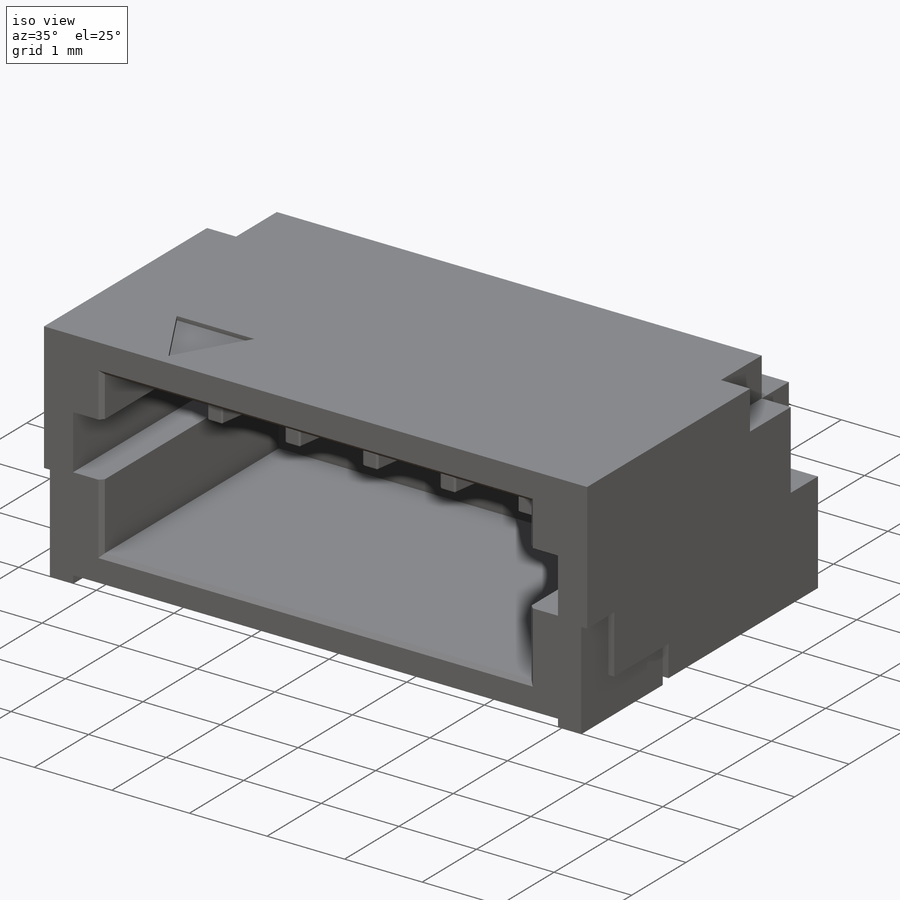
[diagram: iso view]
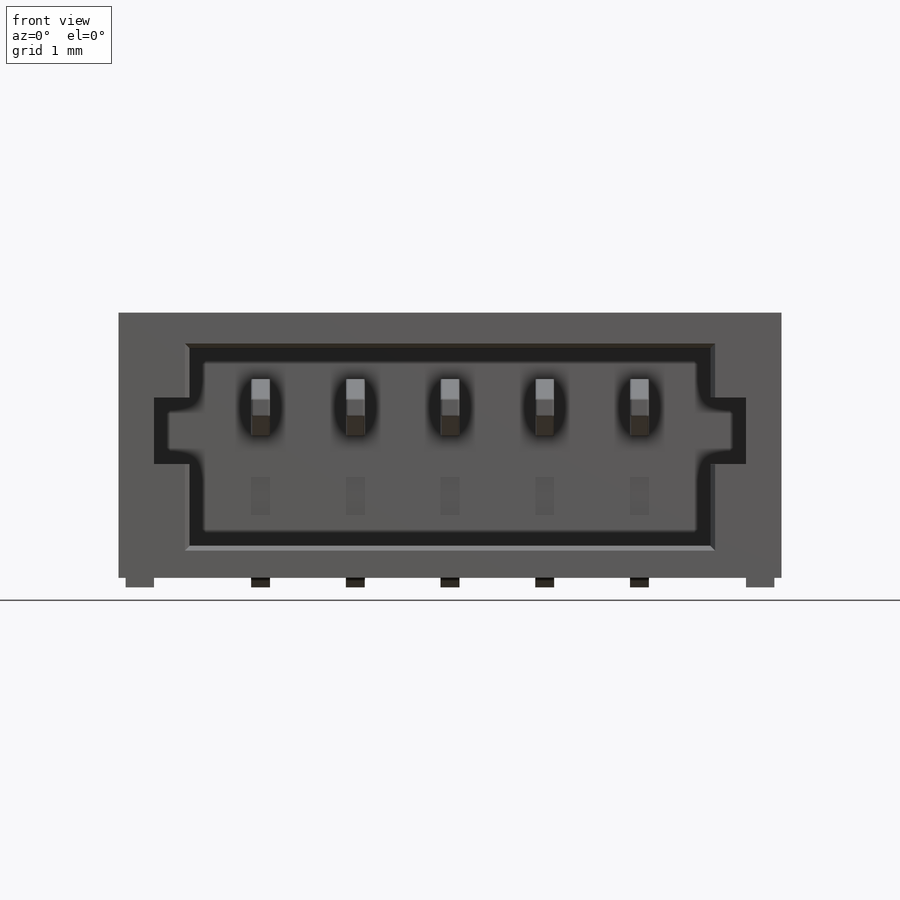
[diagram: front view]
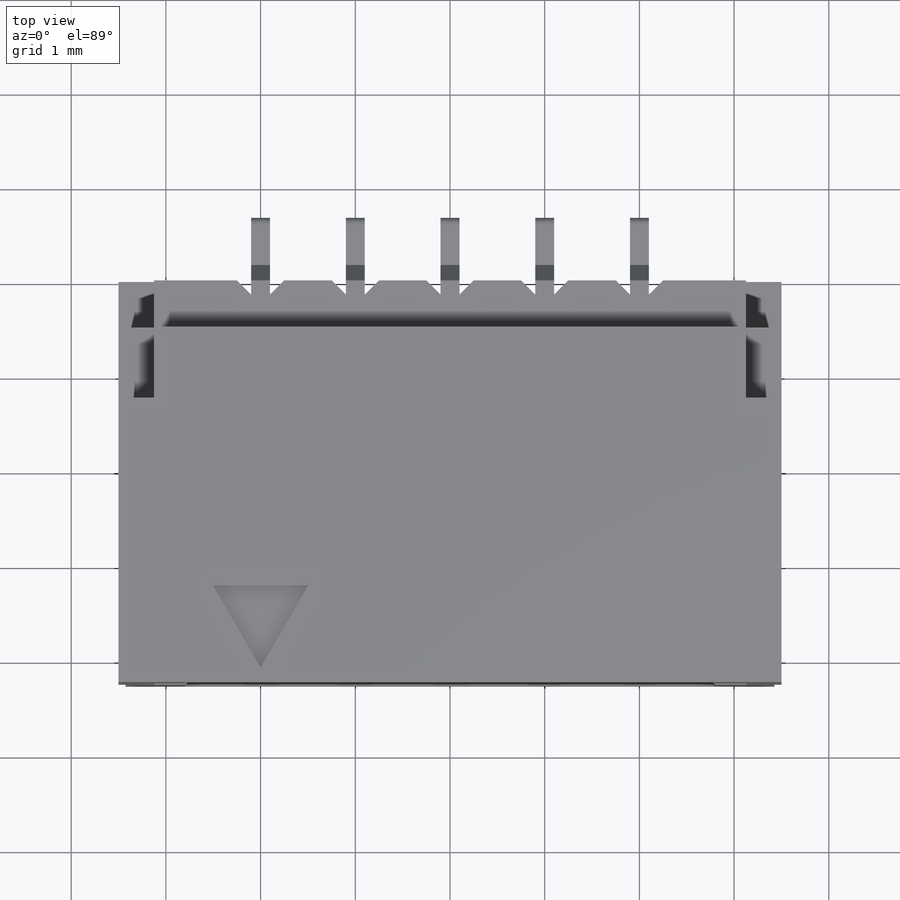
[diagram: top view]
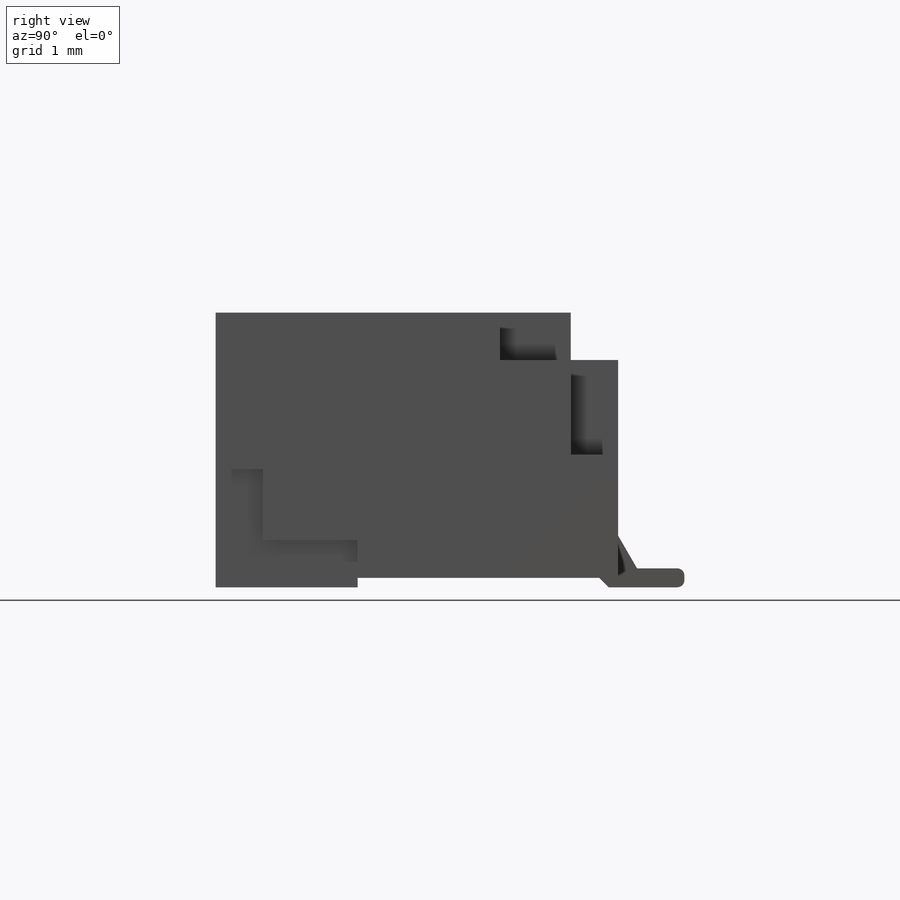
[diagram: right view]
SOLIDWORKS PART (.sldprt)
format: sldprt  version: not decoded by parser v0  size: 1,046,528 bytes
history: native  units: mm
features: sketch x13, cut_extrude x7, extrude x5, pattern_linear x4, chamfer x3, material x1, plane x1, fillet x1, mirror x1 (+12 scaffold rows collapsed)
feature tree (48):
  scaffold x12  (default folders/planes/origin — collapsed)
  material  "Material <not specified>"
  plane  "Right Plane .5mm offset"  Offset=0.5mm
  sketch  "Sketch1"  dims[D1=4.25mm D2=2.9mm]
  extrude  "Extrude1"  Depth=7mm
  sketch  "Sketch2"  dims[c1.D1=2.75mm c1.D2=2.75mm c1.D3=0.375mm c1.D4=0.375mm c1.D5=0.375mm c1.D6=0.4375mm c1.D7=0.6mm c1.D8=0.9mm c2.D7=1.6mm]
  cut_extrude  "Extrude2"  Depth=3.25mm
  sketch  "Sketch3"  dims[c1.D1=0.2mm c1.D2=0.6mm c1.D3=0.7mm c1.D4=1.3mm c2.D2=1.3mm]
  extrude  "Extrude3"  Depth=2.25mm
  pattern_linear  "LPattern1"  Count1=3 Count2=3 Spacing1=1mm Spacing2=1mm
  chamfer  "Chamfer1"  Distance=2mm
  fillet  "Fillet1"  Radius=0.025mm
  sketch  "Sketch4"  dims[D1=0.5mm D2=0.5mm D3=1.5mm D4=1.25mm D5=0.5mm D6=1.5mm D7=1.25mm D8=0.5mm]
  cut_extrude  "Extrude4"  Depth=0.375mm
  mirror  "Mirror1"
  sketch  "Sketch8"  dims[D1=0.0mm]
  extrude  "Extrude7"  Depth=0.3mm
  sketch  "Sketch9"  dims[D1=0.0mm]
  extrude  "Extrude8"  Depth=0.3mm
  sketch  "Sketch6"
  cut_extrude  "Extrude5"  Depth=40.375mm
  sketch  "Sketch7"  dims[D1=0.2mm D2=0.35mm]
  cut_extrude  "Extrude6"  Depth=40.375mm
  pattern_linear  "LPattern2"  Count1=3 Count2=3 Spacing1=1mm Spacing2=1mm
  chamfer  "Chamfer2"  Distance=0.15mm Angle=45deg
  sketch  "Sketch11"  dims[D1=0.0mm]
  cut_extrude  "Extrude10"  Depth=0.1mm
  sketch  "Sketch10"  dims[c1.D6=0.075mm c1.D1=0.35mm c1.D2=0.7mm c1.D3=0.5mm c1.D4=0.5mm c2.D4=120.0deg c2.D5=0.2mm]
  extrude  "Extrude9"  Depth=0.2mm
  pattern_linear  "LPattern3"  Count1=3 Count2=3 Spacing1=1mm Spacing2=1mm
  sketch  "Sketch12"  dims[D1=0.2mm D2=0.4mm D3=1.7375mm]
  cut_extrude  "Extrude11"  Depth=0.05mm
  pattern_linear  "LPattern4"  Count1=3 Count2=3 Spacing1=1mm Spacing2=1mm
  chamfer  "Chamfer3"  Distance=0.05mm Angle=45deg
  sketch  "Sketch13"  dims[D1=1.0mm D2=0.15mm]
  cut_extrude  "Pin 1 mark"  Depth=0.05mm
  sketch  "Sketch - SMT pads with centroid of pin 1"  dims[c1.D1=0.6mm c1.D2=1.2mm c1.D3=1.8mm c1.D4=0.7mm c1.D5=1.0mm c1.D6=~3.25125mm c1.D7=90.0deg c2.D6=4.0mm c2.D7=0.2mm c2.D5=~6.235471mm c2.D8=1.0mm c2.D9=~158.801354deg c3.D9=0.7mm c3.D8=~0.816927mm c4.D9=90.0deg c5.D9=~0.616927mm c5.D8=90.0deg c6.D8=~0.816927mm c6.D9=~0.616927mm c7.D8=90.0deg c8.D8=~0.616927mm c8.D5=~1.47255mm c9.D8=90.0deg c10.D8=~0.816927mm c10.D9=~0.816927mm c11.D8=~158.801354deg c11.D5=5.55mm c12.D8=2.0mm c12.D9=0.7mm c12.D10=1.0mm c12.D11=5.0]
decode coverage: 32 of 34 modeling features carry decoded parameters
note: ~ marks probable driven/reference dimensions
note: suppression state not decoded; provenance and decode notes live in map.json
